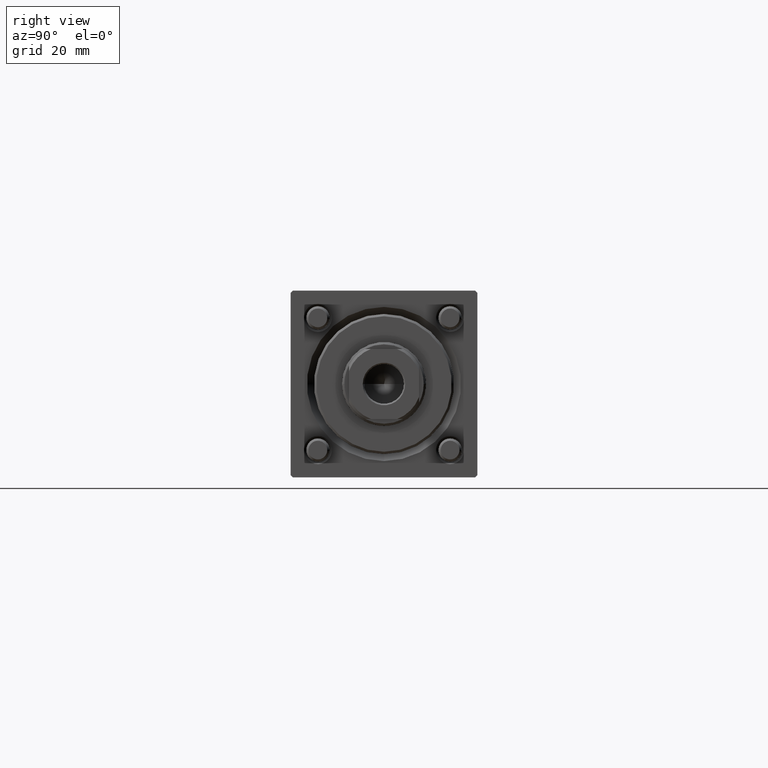
[diagram: clean part render]
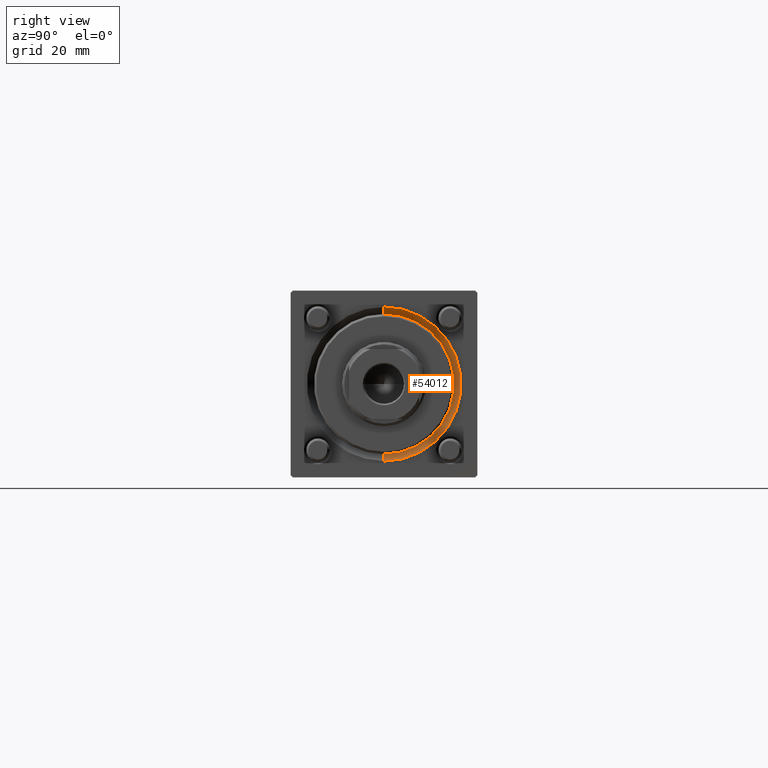
[diagram: same view with one face highlighted and labeled with its STEP entity id]
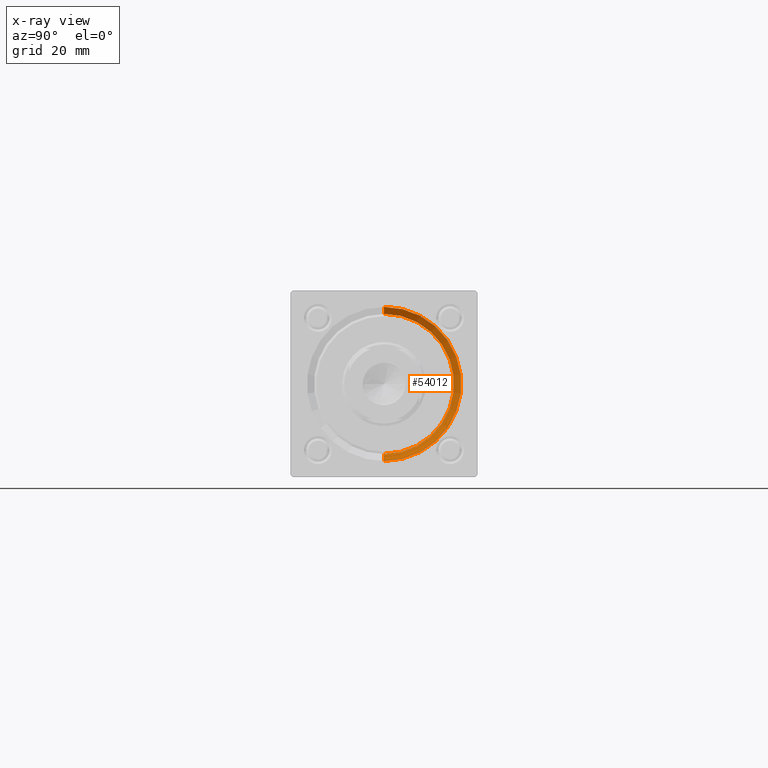
[diagram: x-ray of the same camera — body ghosted, the highlighted face saturated]
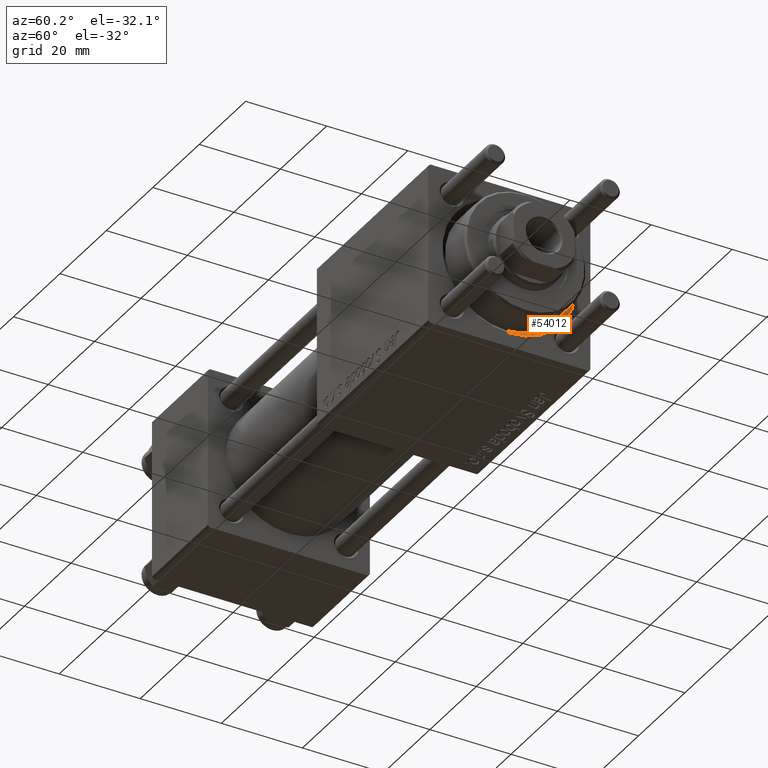
[diagram: same view with one face highlighted and labeled with its STEP entity id]
A machine part, right view. The second image highlights one B-rep face of the part: STEP entity #54012.
The next image is the same camera in x-ray: the body ghosted, the highlighted face saturated — about 0% of this face is hidden behind the body in this view.
A second angle (auxiliary view) of the same face is appended — the face is thin or edge-on in the first view.
In plain terms, the highlighted conical surface has half-angle 45 deg.
Its self-contained STEP definition (entity closure, byte-faithful):
#2396 = ORIENTED_EDGE ( 'NONE', *, *, #27643, .T. ) ;
#3019 = CARTESIAN_POINT ( 'NONE',  ( 117.5000000000000000, 0.000000000000000000, 0.000000000000000000 ) ) ;
#3057 = CARTESIAN_POINT ( 'NONE',  ( 117.5000000000000000, 0.000000000000000000, 0.000000000000000000 ) ) ;
#5412 = ORIENTED_EDGE ( 'NONE', *, *, #7194, .F. ) ;
#6542 = CARTESIAN_POINT ( 'NONE',  ( 117.5000000000000000, 1.836970198721029589E-15, 15.00000000000000000 ) ) ;
#7050 = FACE_OUTER_BOUND ( 'NONE', #10897, .T. ) ;
#7194 = EDGE_CURVE ( 'NONE', #20288, #28861, #19062, .T. ) ;
#8480 = DIRECTION ( 'NONE',  ( 0.7071067811865474617, 0.000000000000000000, -0.7071067811865474617 ) ) ;
#9996 = VERTEX_POINT ( 'NONE', #39311 ) ;
#10830 = AXIS2_PLACEMENT_3D ( 'NONE', #3057, #42050, #46641 ) ;
#10897 = EDGE_LOOP ( 'NONE', ( #45153, #5412, #2396, #33813 ) ) ;
#13187 = DIRECTION ( 'NONE',  ( 0.000000000000000000, 0.000000000000000000, 1.000000000000000000 ) ) ;
#13657 = CIRCLE ( 'NONE', #36573, 16.50000000000001421 ) ;
#14060 = VECTOR ( 'NONE', #41510, 1000.000000000000114 ) ;
#16908 = CARTESIAN_POINT ( 'NONE',  ( 119.0000000000000142, 0.000000000000000000, 0.000000000000000000 ) ) ;
#18110 = CARTESIAN_POINT ( 'NONE',  ( 117.5000000000000000, 1.836970198721029589E-15, 15.00000000000000000 ) ) ;
#19062 = CIRCLE ( 'NONE', #10830, 15.00000000000000000 ) ;
#20288 = VERTEX_POINT ( 'NONE', #26493 ) ;
#26245 = CARTESIAN_POINT ( 'NONE',  ( 117.5000000000000000, 0.000000000000000000, -15.00000000000000000 ) ) ;
#26493 = CARTESIAN_POINT ( 'NONE',  ( 117.5000000000000000, 0.000000000000000000, -15.00000000000000000 ) ) ;
#27643 = EDGE_CURVE ( 'NONE', #20288, #9996, #30840, .T. ) ;
#28619 = LINE ( 'NONE', #6542, #14060 ) ;
#28861 = VERTEX_POINT ( 'NONE', #18110 ) ;
#29554 = AXIS2_PLACEMENT_3D ( 'NONE', #3019, #34006, #41736 ) ;
#30515 = VERTEX_POINT ( 'NONE', #56529 ) ;
#30840 = LINE ( 'NONE', #26245, #36939 ) ;
#33813 = ORIENTED_EDGE ( 'NONE', *, *, #37767, .F. ) ;
#34006 = DIRECTION ( 'NONE',  ( 1.000000000000000000, 0.000000000000000000, 0.000000000000000000 ) ) ;
#35962 = CONICAL_SURFACE ( 'NONE', #29554, 15.00000000000000000, 0.7853981633974482790 ) ;
#36573 = AXIS2_PLACEMENT_3D ( 'NONE', #16908, #48407, #13187 ) ;
#36939 = VECTOR ( 'NONE', #8480, 1000.000000000000114 ) ;
#37767 = EDGE_CURVE ( 'NONE', #30515, #9996, #13657, .T. ) ;
#39311 = CARTESIAN_POINT ( 'NONE',  ( 119.0000000000000142, 0.000000000000000000, -16.50000000000001421 ) ) ;
#41510 = DIRECTION ( 'NONE',  ( 0.7071067811865474617, 8.659560562354932858E-17, 0.7071067811865474617 ) ) ;
#41736 = DIRECTION ( 'NONE',  ( 0.000000000000000000, 0.000000000000000000, -1.000000000000000000 ) ) ;
#42050 = DIRECTION ( 'NONE',  ( 1.000000000000000000, 0.000000000000000000, 0.000000000000000000 ) ) ;
#45153 = ORIENTED_EDGE ( 'NONE', *, *, #56261, .F. ) ;
#46641 = DIRECTION ( 'NONE',  ( 0.000000000000000000, 0.000000000000000000, 1.000000000000000000 ) ) ;
#48407 = DIRECTION ( 'NONE',  ( -1.000000000000000000, -0.000000000000000000, -0.000000000000000000 ) ) ;
#54012 = ADVANCED_FACE ( 'NONE', ( #7050 ), #35962, .F. ) ;
#56261 = EDGE_CURVE ( 'NONE', #28861, #30515, #28619, .T. ) ;
#56529 = CARTESIAN_POINT ( 'NONE',  ( 119.0000000000000142, 2.020667218593134678E-15, 16.50000000000001421 ) ) ;